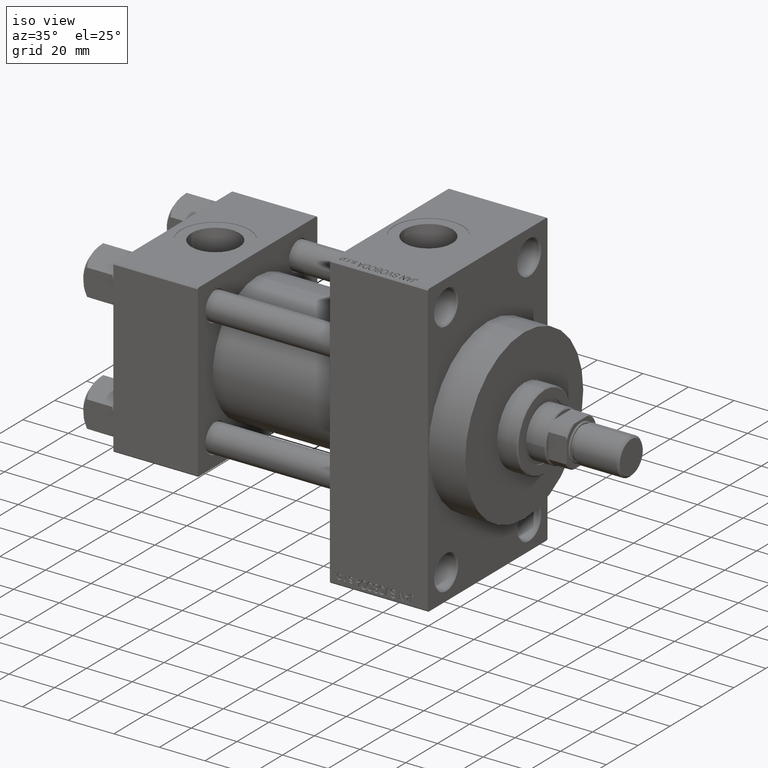
[diagram: clean part render]
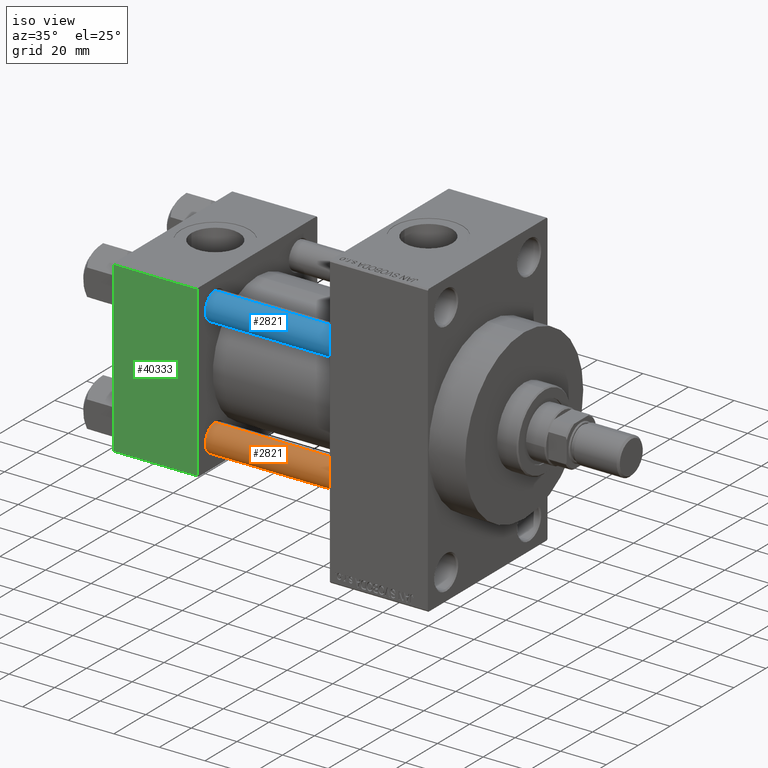
[diagram: same view with three faces highlighted in distinct colors, each labeled with its STEP entity id]
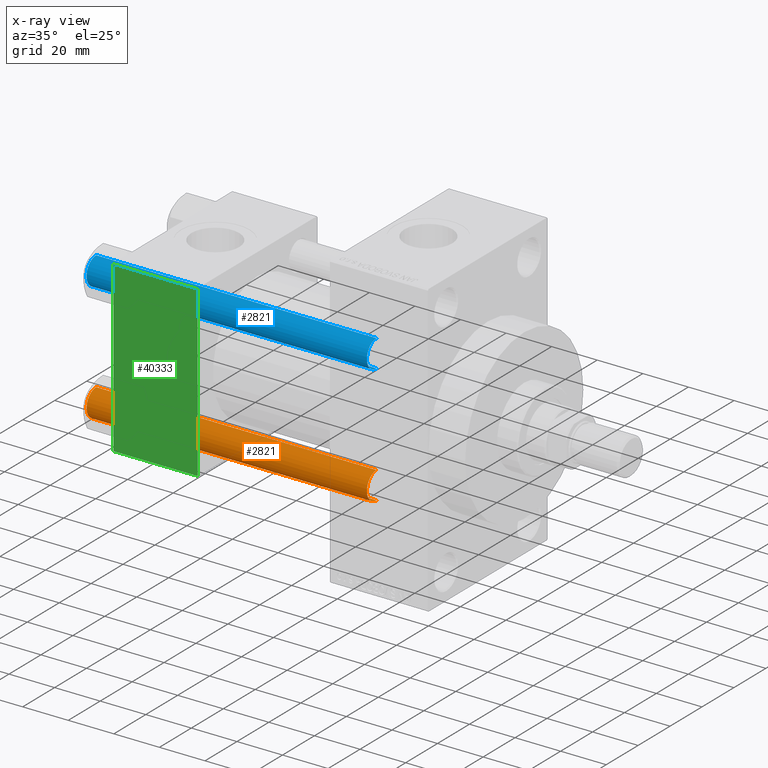
[diagram: x-ray of the same camera — body ghosted, the three highlighted faces saturated]
A machine part, iso view with three faces highlighted in distinct colors.
The next image is the same camera in x-ray (body ghosted, the three faces saturated) — at least one of them is partly hidden behind the body in this view.
Their STEP definitions:

[orange] entity #2821 — the highlighted cylindrical surface (edge-blend (fillet) strip) has radius 6 mm, axis along (1, 0, 0).
#311 = AXIS2_PLACEMENT_3D ( 'NONE', #5234, #24478, #5459 ) ;
#835 = EDGE_CURVE ( 'NONE', #28474, #23954, #3345, .T. ) ;
#967 = AXIS2_PLACEMENT_3D ( 'NONE', #23899, #23435, #27051 ) ;
#2082 = FACE_OUTER_BOUND ( 'NONE', #7918, .T. ) ;
#2821 = ADVANCED_FACE ( 'NONE', ( #2082 ), #16778, .T. ) ;
#3345 = CIRCLE ( 'NONE', #33344, 6.000000000000000888 ) ;
#4822 = CIRCLE ( 'NONE', #967, 6.000000000000000888 ) ;
#5234 = CARTESIAN_POINT ( 'NONE',  ( 0.000000000000000000, 0.000000000000000000, 124.0000000000000000 ) ) ;
#5459 = DIRECTION ( 'NONE',  ( -1.000000000000000000, 0.000000000000000000, 0.000000000000000000 ) ) ;
#6978 = LINE ( 'NONE', #18070, #39544 ) ;
#7769 = ORIENTED_EDGE ( 'NONE', *, *, #15449, .T. ) ;
#7918 = EDGE_LOOP ( 'NONE', ( #7769, #9005, #15051, #10514 ) ) ;
#9005 = ORIENTED_EDGE ( 'NONE', *, *, #43031, .T. ) ;
#10514 = ORIENTED_EDGE ( 'NONE', *, *, #20252, .F. ) ;
#11154 = VECTOR ( 'NONE', #43770, 1000.000000000000000 ) ;
#11891 = CARTESIAN_POINT ( 'NONE',  ( 0.000000000000000000, 0.000000000000000000, 0.4999999999999865663 ) ) ;
#14838 = CARTESIAN_POINT ( 'NONE',  ( -6.000000000000000888, 0.000000000000000000, 124.0000000000000000 ) ) ;
#15051 = ORIENTED_EDGE ( 'NONE', *, *, #835, .T. ) ;
#15378 = CARTESIAN_POINT ( 'NONE',  ( -6.000000000000000888, 0.000000000000000000, 0.4999999999999865663 ) ) ;
#15449 = EDGE_CURVE ( 'NONE', #39922, #35637, #4822, .T. ) ;
#16778 = CYLINDRICAL_SURFACE ( 'NONE', #311, 6.000000000000000888 ) ;
#17064 = CARTESIAN_POINT ( 'NONE',  ( -6.000000000000000888, 0.000000000000000000, 123.5000000000000426 ) ) ;
#18070 = CARTESIAN_POINT ( 'NONE',  ( 6.000000000000000888, 7.347880794884120722E-16, 124.0000000000000000 ) ) ;
#19610 = DIRECTION ( 'NONE',  ( -0.000000000000000000, -0.000000000000000000, 1.000000000000000000 ) ) ;
#20252 = EDGE_CURVE ( 'NONE', #39922, #23954, #47632, .T. ) ;
#23435 = DIRECTION ( 'NONE',  ( 0.000000000000000000, 0.000000000000000000, -1.000000000000000000 ) ) ;
#23899 = CARTESIAN_POINT ( 'NONE',  ( 0.000000000000000000, 0.000000000000000000, 123.5000000000000426 ) ) ;
#23954 = VERTEX_POINT ( 'NONE', #15378 ) ;
#24478 = DIRECTION ( 'NONE',  ( -0.000000000000000000, -0.000000000000000000, -1.000000000000000000 ) ) ;
#27051 = DIRECTION ( 'NONE',  ( 1.000000000000000000, 0.000000000000000000, 0.000000000000000000 ) ) ;
#28474 = VERTEX_POINT ( 'NONE', #42763 ) ;
#33344 = AXIS2_PLACEMENT_3D ( 'NONE', #11891, #19610, #40817 ) ;
#34125 = CARTESIAN_POINT ( 'NONE',  ( 6.000000000000000888, 7.347880794884120722E-16, 123.5000000000000426 ) ) ;
#35637 = VERTEX_POINT ( 'NONE', #34125 ) ;
#39544 = VECTOR ( 'NONE', #45106, 1000.000000000000000 ) ;
#39922 = VERTEX_POINT ( 'NONE', #17064 ) ;
#40817 = DIRECTION ( 'NONE',  ( 1.000000000000000000, 0.000000000000000000, 0.000000000000000000 ) ) ;
#42763 = CARTESIAN_POINT ( 'NONE',  ( 6.000000000000000888, 7.347880794884120722E-16, 0.4999999999999865663 ) ) ;
#43031 = EDGE_CURVE ( 'NONE', #35637, #28474, #6978, .T. ) ;
#43770 = DIRECTION ( 'NONE',  ( -0.000000000000000000, -0.000000000000000000, -1.000000000000000000 ) ) ;
#45106 = DIRECTION ( 'NONE',  ( -0.000000000000000000, -0.000000000000000000, -1.000000000000000000 ) ) ;
#47632 = LINE ( 'NONE', #14838, #11154 ) ;

[blue] entity #2821 — the highlighted cylindrical surface (edge-blend (fillet) strip) has radius 6 mm, axis along (-1, 0, -0).
#311 = AXIS2_PLACEMENT_3D ( 'NONE', #5234, #24478, #5459 ) ;
#835 = EDGE_CURVE ( 'NONE', #28474, #23954, #3345, .T. ) ;
#967 = AXIS2_PLACEMENT_3D ( 'NONE', #23899, #23435, #27051 ) ;
#2082 = FACE_OUTER_BOUND ( 'NONE', #7918, .T. ) ;
#2821 = ADVANCED_FACE ( 'NONE', ( #2082 ), #16778, .T. ) ;
#3345 = CIRCLE ( 'NONE', #33344, 6.000000000000000888 ) ;
#4822 = CIRCLE ( 'NONE', #967, 6.000000000000000888 ) ;
#5234 = CARTESIAN_POINT ( 'NONE',  ( 0.000000000000000000, 0.000000000000000000, 124.0000000000000000 ) ) ;
#5459 = DIRECTION ( 'NONE',  ( -1.000000000000000000, 0.000000000000000000, 0.000000000000000000 ) ) ;
#6978 = LINE ( 'NONE', #18070, #39544 ) ;
#7769 = ORIENTED_EDGE ( 'NONE', *, *, #15449, .T. ) ;
#7918 = EDGE_LOOP ( 'NONE', ( #7769, #9005, #15051, #10514 ) ) ;
#9005 = ORIENTED_EDGE ( 'NONE', *, *, #43031, .T. ) ;
#10514 = ORIENTED_EDGE ( 'NONE', *, *, #20252, .F. ) ;
#11154 = VECTOR ( 'NONE', #43770, 1000.000000000000000 ) ;
#11891 = CARTESIAN_POINT ( 'NONE',  ( 0.000000000000000000, 0.000000000000000000, 0.4999999999999865663 ) ) ;
#14838 = CARTESIAN_POINT ( 'NONE',  ( -6.000000000000000888, 0.000000000000000000, 124.0000000000000000 ) ) ;
#15051 = ORIENTED_EDGE ( 'NONE', *, *, #835, .T. ) ;
#15378 = CARTESIAN_POINT ( 'NONE',  ( -6.000000000000000888, 0.000000000000000000, 0.4999999999999865663 ) ) ;
#15449 = EDGE_CURVE ( 'NONE', #39922, #35637, #4822, .T. ) ;
#16778 = CYLINDRICAL_SURFACE ( 'NONE', #311, 6.000000000000000888 ) ;
#17064 = CARTESIAN_POINT ( 'NONE',  ( -6.000000000000000888, 0.000000000000000000, 123.5000000000000426 ) ) ;
#18070 = CARTESIAN_POINT ( 'NONE',  ( 6.000000000000000888, 7.347880794884120722E-16, 124.0000000000000000 ) ) ;
#19610 = DIRECTION ( 'NONE',  ( -0.000000000000000000, -0.000000000000000000, 1.000000000000000000 ) ) ;
#20252 = EDGE_CURVE ( 'NONE', #39922, #23954, #47632, .T. ) ;
#23435 = DIRECTION ( 'NONE',  ( 0.000000000000000000, 0.000000000000000000, -1.000000000000000000 ) ) ;
#23899 = CARTESIAN_POINT ( 'NONE',  ( 0.000000000000000000, 0.000000000000000000, 123.5000000000000426 ) ) ;
#23954 = VERTEX_POINT ( 'NONE', #15378 ) ;
#24478 = DIRECTION ( 'NONE',  ( -0.000000000000000000, -0.000000000000000000, -1.000000000000000000 ) ) ;
#27051 = DIRECTION ( 'NONE',  ( 1.000000000000000000, 0.000000000000000000, 0.000000000000000000 ) ) ;
#28474 = VERTEX_POINT ( 'NONE', #42763 ) ;
#33344 = AXIS2_PLACEMENT_3D ( 'NONE', #11891, #19610, #40817 ) ;
#34125 = CARTESIAN_POINT ( 'NONE',  ( 6.000000000000000888, 7.347880794884120722E-16, 123.5000000000000426 ) ) ;
#35637 = VERTEX_POINT ( 'NONE', #34125 ) ;
#39544 = VECTOR ( 'NONE', #45106, 1000.000000000000000 ) ;
#39922 = VERTEX_POINT ( 'NONE', #17064 ) ;
#40817 = DIRECTION ( 'NONE',  ( 1.000000000000000000, 0.000000000000000000, 0.000000000000000000 ) ) ;
#42763 = CARTESIAN_POINT ( 'NONE',  ( 6.000000000000000888, 7.347880794884120722E-16, 0.4999999999999865663 ) ) ;
#43031 = EDGE_CURVE ( 'NONE', #35637, #28474, #6978, .T. ) ;
#43770 = DIRECTION ( 'NONE',  ( -0.000000000000000000, -0.000000000000000000, -1.000000000000000000 ) ) ;
#45106 = DIRECTION ( 'NONE',  ( -0.000000000000000000, -0.000000000000000000, -1.000000000000000000 ) ) ;
#47632 = LINE ( 'NONE', #14838, #11154 ) ;

[green] entity #40333 — the highlighted planar face has unit normal (0, 1, 0).
#1855 = CARTESIAN_POINT ( 'NONE',  ( 37.00000000000000000, -37.50000000000000711, 37.49999999999999289 ) ) ;
#3570 = LINE ( 'NONE', #14880, #18834 ) ;
#5737 = CARTESIAN_POINT ( 'NONE',  ( 37.00000000000000000, -37.50000000000000711, 36.99999999999999289 ) ) ;
#6560 = CARTESIAN_POINT ( 'NONE',  ( 37.00000000000000000, -37.50000000000000711, 36.99999999999999289 ) ) ;
#9757 = DIRECTION ( 'NONE',  ( -0.000000000000000000, 1.000000000000000000, 9.251858538542971581E-17 ) ) ;
#10640 = EDGE_LOOP ( 'NONE', ( #17875, #42627, #42312, #46101 ) ) ;
#12817 = DIRECTION ( 'NONE',  ( 0.000000000000000000, 9.251858538542971581E-17, -1.000000000000000000 ) ) ;
#14880 = CARTESIAN_POINT ( 'NONE',  ( 0.000000000000000000, -37.50000000000000711, 37.49999999999999289 ) ) ;
#15527 = VERTEX_POINT ( 'NONE', #32063 ) ;
#15624 = VECTOR ( 'NONE', #20338, 1000.000000000000000 ) ;
#16558 = DIRECTION ( 'NONE',  ( 0.000000000000000000, -9.251858538542971581E-17, 1.000000000000000000 ) ) ;
#17875 = ORIENTED_EDGE ( 'NONE', *, *, #20775, .T. ) ;
#18834 = VECTOR ( 'NONE', #41131, 1000.000000000000000 ) ;
#19046 = VECTOR ( 'NONE', #38052, 1000.000000000000000 ) ;
#20338 = DIRECTION ( 'NONE',  ( 1.000000000000000000, 0.000000000000000000, 0.000000000000000000 ) ) ;
#20775 = EDGE_CURVE ( 'NONE', #42345, #15527, #3570, .T. ) ;
#24048 = LINE ( 'NONE', #5737, #19046 ) ;
#26359 = EDGE_CURVE ( 'NONE', #44765, #42345, #24048, .T. ) ;
#28108 = FACE_OUTER_BOUND ( 'NONE', #10640, .T. ) ;
#31803 = AXIS2_PLACEMENT_3D ( 'NONE', #1855, #9757, #16558 ) ;
#32063 = CARTESIAN_POINT ( 'NONE',  ( 0.000000000000000000, -37.50000000000000000, -37.00000000000003553 ) ) ;
#32187 = PLANE ( 'NONE',  #31803 ) ;
#33807 = LINE ( 'NONE', #45845, #44826 ) ;
#33926 = CARTESIAN_POINT ( 'NONE',  ( 37.00000000000000000, -37.50000000000000000, -37.00000000000003553 ) ) ;
#38052 = DIRECTION ( 'NONE',  ( -1.000000000000000000, 0.000000000000000000, 0.000000000000000000 ) ) ;
#38810 = EDGE_CURVE ( 'NONE', #44765, #39307, #33807, .T. ) ;
#39307 = VERTEX_POINT ( 'NONE', #33926 ) ;
#39587 = EDGE_CURVE ( 'NONE', #15527, #39307, #42268, .T. ) ;
#40333 = ADVANCED_FACE ( 'NONE', ( #28108 ), #32187, .F. ) ;
#41131 = DIRECTION ( 'NONE',  ( 0.000000000000000000, 9.251858538542971581E-17, -1.000000000000000000 ) ) ;
#41168 = CARTESIAN_POINT ( 'NONE',  ( 0.000000000000000000, -37.50000000000000711, 36.99999999999999289 ) ) ;
#42268 = LINE ( 'NONE', #42728, #15624 ) ;
#42312 = ORIENTED_EDGE ( 'NONE', *, *, #38810, .F. ) ;
#42345 = VERTEX_POINT ( 'NONE', #41168 ) ;
#42627 = ORIENTED_EDGE ( 'NONE', *, *, #39587, .T. ) ;
#42728 = CARTESIAN_POINT ( 'NONE',  ( 37.00000000000000000, -37.50000000000000000, -37.00000000000003553 ) ) ;
#44765 = VERTEX_POINT ( 'NONE', #6560 ) ;
#44826 = VECTOR ( 'NONE', #12817, 1000.000000000000000 ) ;
#45845 = CARTESIAN_POINT ( 'NONE',  ( 37.00000000000000000, -37.50000000000000711, 37.49999999999999289 ) ) ;
#46101 = ORIENTED_EDGE ( 'NONE', *, *, #26359, .T. ) ;